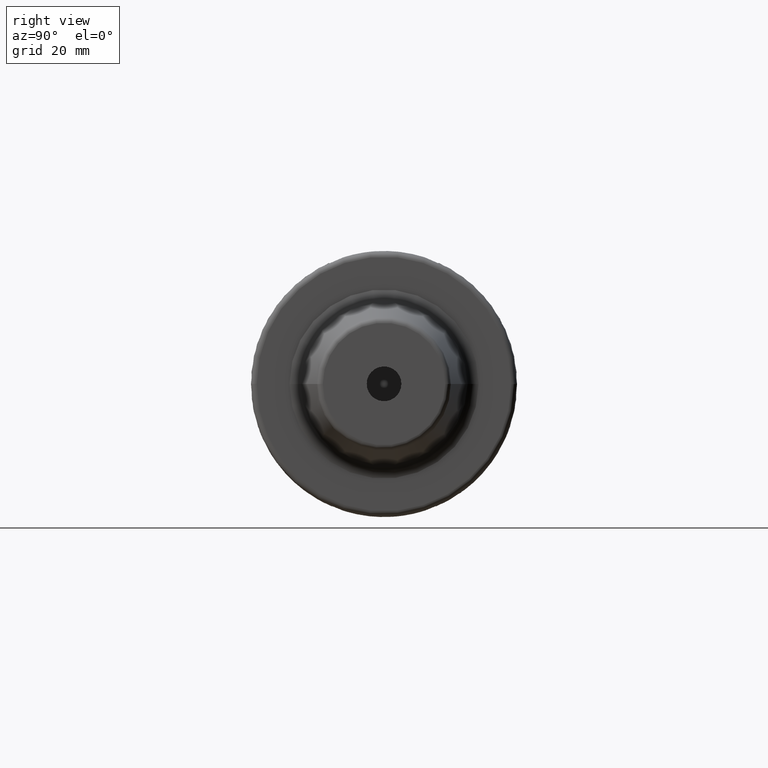
[diagram: clean part render]
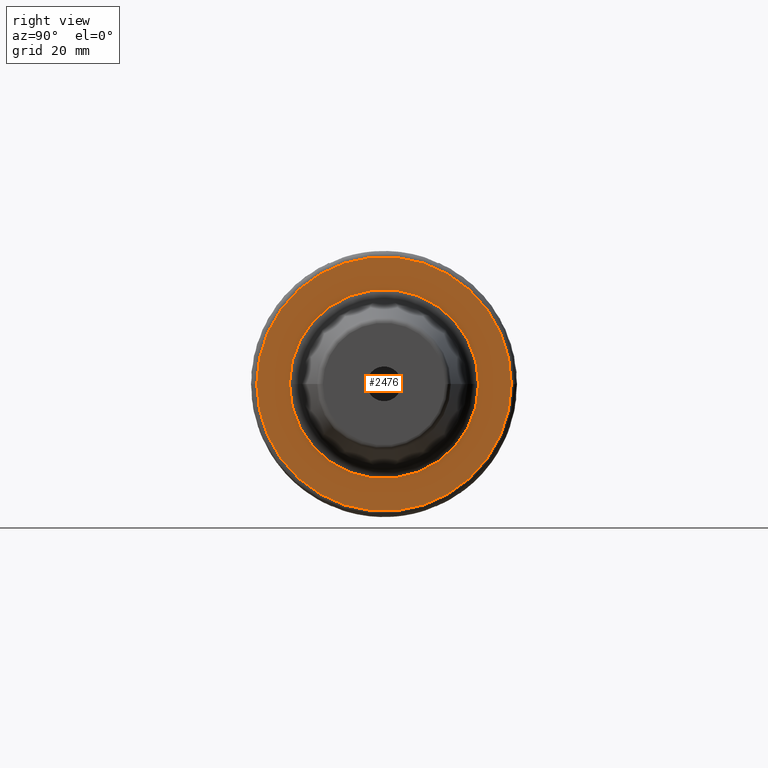
[diagram: same view with one face highlighted and labeled with its STEP entity id]
A machine part, right view. The second image highlights one B-rep face of the part: STEP entity #2476.
In plain terms, the highlighted planar face has unit normal (1, 0, 0).
Its self-contained STEP definition (entity closure, byte-faithful):
#802=CARTESIAN_POINT('',(2.2E1,0.E0,0.E0));
#803=DIRECTION('',(1.E0,0.E0,0.E0));
#804=DIRECTION('',(0.E0,1.E0,0.E0));
#805=AXIS2_PLACEMENT_3D('',#802,#803,#804);
#817=CARTESIAN_POINT('',(2.2E1,0.E0,0.E0));
#818=DIRECTION('',(-1.E0,0.E0,0.E0));
#819=DIRECTION('',(0.E0,1.E0,0.E0));
#820=AXIS2_PLACEMENT_3D('',#817,#818,#819);
#822=CARTESIAN_POINT('',(2.2E1,0.E0,0.E0));
#823=DIRECTION('',(1.E0,0.E0,0.E0));
#824=DIRECTION('',(0.E0,-1.E0,0.E0));
#825=AXIS2_PLACEMENT_3D('',#822,#823,#824);
#827=CARTESIAN_POINT('',(2.2E1,0.E0,0.E0));
#828=DIRECTION('',(1.E0,0.E0,0.E0));
#829=DIRECTION('',(0.E0,1.E0,0.E0));
#830=AXIS2_PLACEMENT_3D('',#827,#828,#829);
#1272=CARTESIAN_POINT('',(2.2E1,2.199E1,0.E0));
#1273=VERTEX_POINT('',#1272);
#1274=CARTESIAN_POINT('',(2.2E1,-2.199E1,0.E0));
#1275=VERTEX_POINT('',#1274);
#1373=CARTESIAN_POINT('',(2.2E1,-1.633944584265E1,0.E0));
#1374=CARTESIAN_POINT('',(2.2E1,1.633944584265E1,0.E0));
#1375=VERTEX_POINT('',#1373);
#1376=VERTEX_POINT('',#1374);
#2461=CARTESIAN_POINT('',(2.2E1,0.E0,0.E0));
#2462=DIRECTION('',(1.E0,0.E0,0.E0));
#2463=DIRECTION('',(0.E0,-1.E0,0.E0));
#2464=AXIS2_PLACEMENT_3D('',#2461,#2462,#2463);
#2465=PLANE('',#2464);
#2466=ORIENTED_EDGE('',*,*,#2456,.T.);
#2467=ORIENTED_EDGE('',*,*,#2440,.F.);
#2468=EDGE_LOOP('',(#2466,#2467));
#2469=FACE_OUTER_BOUND('',#2468,.F.);
#2471=ORIENTED_EDGE('',*,*,#2470,.T.);
#2473=ORIENTED_EDGE('',*,*,#2472,.T.);
#2474=EDGE_LOOP('',(#2471,#2473));
#2475=FACE_BOUND('',#2474,.F.);
#2476=ADVANCED_FACE('',(#2469,#2475),#2465,.T.);
#806=CIRCLE('',#805,2.199E1);
#821=CIRCLE('',#820,2.199E1);
#826=CIRCLE('',#825,1.633944584265E1);
#831=CIRCLE('',#830,1.633944584265E1);
#2440=EDGE_CURVE('',#1273,#1275,#806,.T.);
#2456=EDGE_CURVE('',#1273,#1275,#821,.T.);
#2470=EDGE_CURVE('',#1375,#1376,#826,.T.);
#2472=EDGE_CURVE('',#1376,#1375,#831,.T.);